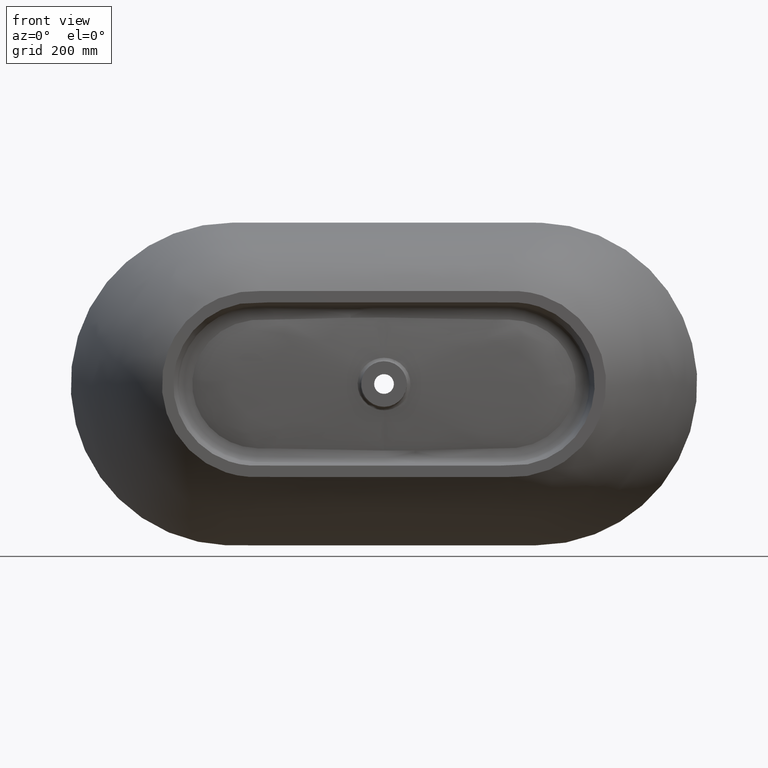
[diagram: clean part render]
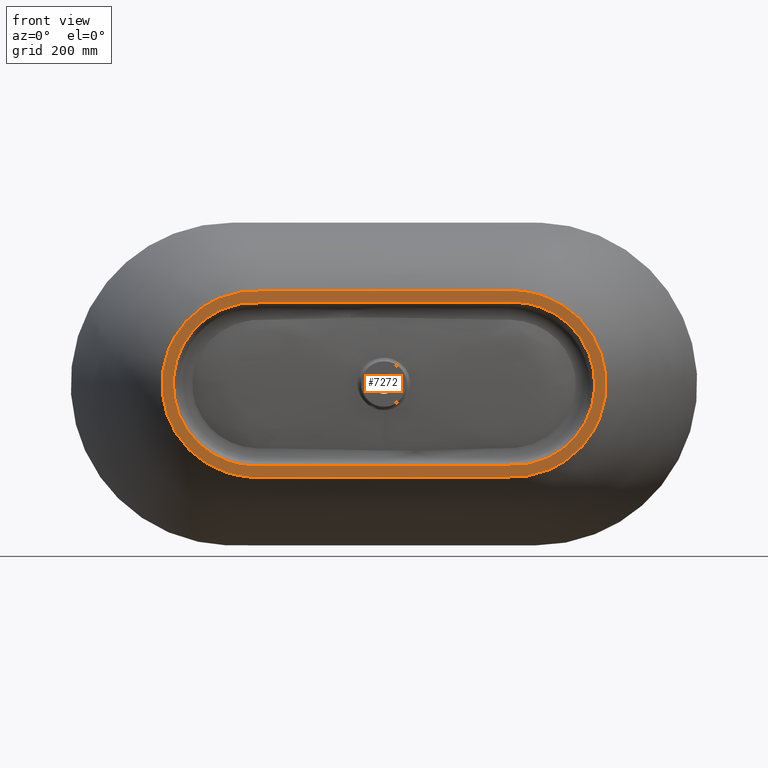
[diagram: same view with one face highlighted and labeled with its STEP entity id]
A machine part, front view. The second image highlights one B-rep face of the part: STEP entity #7272.
In plain terms, the highlighted planar face has unit normal (-0, -1, 0).
Its self-contained STEP definition (entity closure, byte-faithful):
#35 = CARTESIAN_POINT ( 'NONE',  ( -257.5522965645100700, -520.0000000000000000, -214.9999999999999400 ) ) ;
#216 = CARTESIAN_POINT ( 'NONE',  ( 90.41702080883963800, -520.0000000000000000, -244.9999999999997700 ) ) ;
#301 = CARTESIAN_POINT ( 'NONE',  ( 300.3871567263852900, -520.0000000000000000, -215.0000000000002800 ) ) ;
#363 = CARTESIAN_POINT ( 'NONE',  ( 551.9206403170097700, -520.0000000000000000, -41.99693631105152000 ) ) ;
#424 = CARTESIAN_POINT ( 'NONE',  ( 332.5872304533469900, -520.0000000000000000, 214.9999999999999100 ) ) ;
#576 = CARTESIAN_POINT ( 'NONE',  ( -22.60425520220978900, -520.0000000000000000, 245.0000000000000600 ) ) ;
#624 = CARTESIAN_POINT ( 'NONE',  ( -420.5359307558968600, -520.0000000000000000, 233.0066095239372700 ) ) ;
#676 = CARTESIAN_POINT ( 'NONE',  ( -520.9419420288196500, -520.0000000000000000, -166.4165818250603500 ) ) ;
#730 = CARTESIAN_POINT ( 'NONE',  ( -180.8340416176759200, -520.0000000000000000, -244.9999999999998900 ) ) ;
#997 = CARTESIAN_POINT ( 'NONE',  ( 366.8051746538268400, -520.0000000000000000, -243.5484346488350100 ) ) ;
#1051 = CARTESIAN_POINT ( 'NONE',  ( 571.3716036474653500, -520.0000000000000000, 82.47199614046758100 ) ) ;
#1107 = CARTESIAN_POINT ( 'NONE',  ( 302.8190437295374400, -520.0000000000000000, 245.0000000000000000 ) ) ;
#1125 = VERTEX_POINT ( 'NONE', #12887 ) ;
#1164 = CARTESIAN_POINT ( 'NONE',  ( -38.02641016758445900, -520.0000000000000000, 215.0000000000000600 ) ) ;
#1219 = CARTESIAN_POINT ( 'NONE',  ( -432.5557374642888200, -520.0000000000000000, 195.3177173248473100 ) ) ;
#1254 = ORIENTED_EDGE ( 'NONE', *, *, #15651, .T. ) ;
#1277 = CARTESIAN_POINT ( 'NONE',  ( -466.3415299936548300, -520.0000000000000000, -175.3112923314426700 ) ) ;
#1332 = CARTESIAN_POINT ( 'NONE',  ( 10.31327349446679900, -520.0000000000001100, 214.9999999999793700 ) ) ;
#1339 = CARTESIAN_POINT ( 'NONE',  ( -84.50313370574247100, -520.0000000000000000, -214.9999999999999700 ) ) ;
#1590 = CARTESIAN_POINT ( 'NONE',  ( 332.5872304533469300, -520.0000000000000000, -215.0000000000000600 ) ) ;
#1645 = CARTESIAN_POINT ( 'NONE',  ( 551.9206403170102200, -520.0000000000001100, 41.99693631105114400 ) ) ;
#1673 = ORIENTED_EDGE ( 'NONE', *, *, #14366, .T. ) ;
#1697 = CARTESIAN_POINT ( 'NONE',  ( 300.3871567263854000, -520.0000000000000000, 214.9999999999998600 ) ) ;
#1849 = CARTESIAN_POINT ( 'NONE',  ( -122.0629780919324400, -520.0000000000000000, 245.0000000000002000 ) ) ;
#1897 = CARTESIAN_POINT ( 'NONE',  ( -495.2204484716090700, -520.0000000000000000, 190.9875430266695300 ) ) ;
#1946 = CARTESIAN_POINT ( 'NONE',  ( -460.3643974913436000, -520.0000000000002300, -214.7080822653276200 ) ) ;
#1998 = CARTESIAN_POINT ( 'NONE',  ( 2.094515084690348400E-012, -520.0000000000000000, -244.9999999999998300 ) ) ;
#2269 = CARTESIAN_POINT ( 'NONE',  ( 389.6510431050084000, -520.0000000000000000, -240.4959836230623900 ) ) ;
#2322 = CARTESIAN_POINT ( 'NONE',  ( 542.1981400596857800, -520.0000000000000000, 139.3641364882206800 ) ) ;
#2373 = CARTESIAN_POINT ( 'NONE',  ( 275.5768968157795500, -520.0000000000000000, 245.0000000000000000 ) ) ;
#2434 = CARTESIAN_POINT ( 'NONE',  ( -185.9068941526349800, -520.0000000000000000, 214.9999999999997200 ) ) ;
#2483 = CARTESIAN_POINT ( 'NONE',  ( -491.5787133488913700, -520.0000000000000000, 153.6634307035676600 ) ) ;
#2537 = CARTESIAN_POINT ( 'NONE',  ( -394.1818514382088100, -520.0000000000000000, -209.6317060663056400 ) ) ;
#2852 = CARTESIAN_POINT ( 'NONE',  ( 345.9634401219416900, -520.0000000000000000, -214.9377571204438800 ) ) ;
#2914 = CARTESIAN_POINT ( 'NONE',  ( 529.8286189581423300, -520.0000000000000000, 102.9915015449335700 ) ) ;
#2967 = CARTESIAN_POINT ( 'NONE',  ( 261.5951920117919900, -520.0000000000000000, 214.9999999999999100 ) ) ;
#3104 = CARTESIAN_POINT ( 'NONE',  ( -275.5768968157791500, -520.0000000000000000, 245.0000000000000000 ) ) ;
#3160 = CARTESIAN_POINT ( 'NONE',  ( -542.1981400596857800, -519.9999999999998900, 139.3641364882205900 ) ) ;
#3216 = CARTESIAN_POINT ( 'NONE',  ( -389.6510431050077700, -520.0000000000000000, -240.4959836230623000 ) ) ;
#3470 = CARTESIAN_POINT ( 'NONE',  ( 2.094515084690348400E-012, -520.0000000000000000, -244.9999999999998300 ) ) ;
#3522 = CARTESIAN_POINT ( 'NONE',  ( 460.3643974913441600, -520.0000000000000000, -214.7080822653272200 ) ) ;
#3572 = CARTESIAN_POINT ( 'NONE',  ( 495.2204484716088500, -520.0000000000002300, 190.9875430266696100 ) ) ;
#3607 = ORIENTED_EDGE ( 'NONE', *, *, #8947, .F. ) ;
#3621 = CARTESIAN_POINT ( 'NONE',  ( 122.0629780919322800, -520.0000000000000000, 244.9999999999997200 ) ) ;
#3676 = CARTESIAN_POINT ( 'NONE',  ( -261.5951920117921100, -520.0000000000000000, 214.9999999999999700 ) ) ;
#3705 = EDGE_LOOP ( 'NONE', ( #10043, #3607 ) ) ;
#3728 = CARTESIAN_POINT ( 'NONE',  ( -529.8286189581424400, -519.9999999999998900, 102.9915015449336400 ) ) ;
#3785 = CARTESIAN_POINT ( 'NONE',  ( -345.9634401219429400, -520.0000000000000000, -214.9377571204437900 ) ) ;
#3916 = AXIS2_PLACEMENT_3D ( 'NONE', #1332, #6537, #15304 ) ;
#4050 = CARTESIAN_POINT ( 'NONE',  ( 2.153672480649979000E-014, -520.0000000000000000, -214.9999999999999100 ) ) ;
#4107 = CARTESIAN_POINT ( 'NONE',  ( 394.1818514382069900, -520.0000000000000000, -209.6317060663058100 ) ) ;
#4164 = CARTESIAN_POINT ( 'NONE',  ( 491.5787133488913700, -520.0000000000000000, 153.6634307035674900 ) ) ;
#4212 = CARTESIAN_POINT ( 'NONE',  ( 185.9068941526347500, -520.0000000000000000, 214.9999999999998600 ) ) ;
#4369 = CARTESIAN_POINT ( 'NONE',  ( -302.8190437295375000, -520.0000000000000000, 244.9999999999998900 ) ) ;
#4420 = CARTESIAN_POINT ( 'NONE',  ( -571.3716036474651200, -519.9999999999998900, 82.47199614046721200 ) ) ;
#4478 = CARTESIAN_POINT ( 'NONE',  ( -366.8051746538251900, -520.0000000000000000, -243.5484346488350700 ) ) ;
#4730 = CARTESIAN_POINT ( 'NONE',  ( 180.8340416176772300, -520.0000000000000000, -244.9999999999996600 ) ) ;
#4782 = CARTESIAN_POINT ( 'NONE',  ( 520.9419420288199900, -519.9999999999998900, -166.4165818250595500 ) ) ;
#4842 = CARTESIAN_POINT ( 'NONE',  ( 420.5359307558969700, -520.0000000000000000, 233.0066095239373000 ) ) ;
#4857 = CARTESIAN_POINT ( 'NONE',  ( 2.094515084690348400E-012, -520.0000000000000000, -244.9999999999998300 ) ) ;
#4889 = CARTESIAN_POINT ( 'NONE',  ( 27.17686934352849800, -520.0000000000001100, 244.7461983491785100 ) ) ;
#4946 = CARTESIAN_POINT ( 'NONE',  ( -300.3871567263849400, -520.0000000000004500, 214.9999999999998600 ) ) ;
#5006 = CARTESIAN_POINT ( 'NONE',  ( -551.9206403170100000, -520.0000000000000000, 41.99693631105129300 ) ) ;
#5064 = CARTESIAN_POINT ( 'NONE',  ( -332.5872304533477300, -520.0000000000000000, -214.9999999999999100 ) ) ;
#5394 = CARTESIAN_POINT ( 'NONE',  ( 466.3415299936539200, -520.0000000000000000, -175.3112923314430700 ) ) ;
#5457 = CARTESIAN_POINT ( 'NONE',  ( 432.5557374642891700, -520.0000000000000000, 195.3177173248472500 ) ) ;
#5510 = CARTESIAN_POINT ( 'NONE',  ( 38.02641016758431600, -520.0000000000000000, 214.9999999999998900 ) ) ;
#5554 = B_SPLINE_CURVE_WITH_KNOTS ( 'NONE', 3,
 ( #3470, #216, #4730, #13538, #6043, #14814, #7343, #16081, #8603, #997, #9837, #2269, #11052, #3522, #12326, #4782, #13592, #6097, #14865, #7396, #16139, #8658, #1051, #9886, #2322, #11104, #3572, #12382, #4842, #13645, #6152, #14928, #7453, #16193, #8709, #1107, #9936, #2373, #11158, #3621, #12432, #4889, #13698, #6202 ),
 .UNSPECIFIED., .F., .F.,
 ( 4, 2, 2, 2, 2, 2, 1, 1, 1, 1, 1, 1, 1, 1, 1, 1, 1, 1, 1, 1, 1, 1, 1, 2, 2, 2, 2, 2, 1, 1, 1, 4 ),
 ( 0.5000000000000002200, 0.5929123738240255100, 0.5973575937425831300, 0.6164611368433877700, 0.6246115803238427900, 0.6278934392747964600, 0.6452749158826837100, 0.6609740912289252500, 0.6736787968712916200, 0.6889467196373984000, 0.6976374579413418000, 0.7092978130915990100, 0.7238187289706709000, 0.7296489065457996100, 0.7500000000008616400, 0.7703510934542008300, 0.7761812710293291000, 0.7907021869084014400, 0.8023625420586582000, 0.8110532803626020500, 0.8263212031287084900, 0.8390259087710750800, 0.8547250841173162900, 0.8721065607252039800, 0.8753884196761577700, 0.8835388631566126700, 0.9026424062574171000, 0.9070876261759744900, 0.9814175252351948800, 0.9860631439263961600, 0.9907087626175974400, 1.000000000000000000 ),
 .UNSPECIFIED. ) ;
#5671 = CARTESIAN_POINT ( 'NONE',  ( -347.9315465469571800, -520.0000000000000000, 245.0000000000003400 ) ) ;
#5727 = CARTESIAN_POINT ( 'NONE',  ( -587.4048310695582100, -520.0000000000001100, -1.977584762613560100E-013 ) ) ;
#5781 = CARTESIAN_POINT ( 'NONE',  ( -347.9315465469564400, -520.0000000000000000, -244.9999999999999400 ) ) ;
#6043 = CARTESIAN_POINT ( 'NONE',  ( 279.9027312050421900, -520.0000000000000000, -245.0000000000000900 ) ) ;
#6097 = CARTESIAN_POINT ( 'NONE',  ( 559.6452825062745000, -519.9999999999998900, -110.7294835328564200 ) ) ;
#6152 = CARTESIAN_POINT ( 'NONE',  ( 369.9468795812320500, -520.0000000000000000, 243.1817835745785300 ) ) ;
#6202 = CARTESIAN_POINT ( 'NONE',  ( 0.9145228282635448100, -520.0000000000000000, 244.9999999999882600 ) ) ;
#6264 = CARTESIAN_POINT ( 'NONE',  ( -332.5872304533471600, -520.0000000000000000, 215.0000000000000300 ) ) ;
#6318 = CARTESIAN_POINT ( 'NONE',  ( -551.9206403170100000, -519.9999999999998900, -41.99693631105110800 ) ) ;
#6374 = CARTESIAN_POINT ( 'NONE',  ( -300.3871567263864800, -520.0000000000000000, -215.0000000000002000 ) ) ;
#6537 = DIRECTION ( 'NONE',  ( -5.916901883475266000E-015, -1.000000000000000000, 1.099506799355181100E-016 ) ) ;
#6634 = CARTESIAN_POINT ( 'NONE',  ( 257.5522965645092200, -520.0000000000000000, -214.9999999999999700 ) ) ;
#6699 = CARTESIAN_POINT ( 'NONE',  ( 512.5400191937372900, -519.9999999999997700, -129.2356309731933100 ) ) ;
#6758 = CARTESIAN_POINT ( 'NONE',  ( 364.6669578311810400, -520.0000000000000000, 214.1589715166276700 ) ) ;
#6811 = CARTESIAN_POINT ( 'NONE',  ( 10.31327349446679900, -520.0000000000000000, 214.9999999999793700 ) ) ;
#6915 = CARTESIAN_POINT ( 'NONE',  ( -9.041702080883864000, -520.0000000000000000, 245.0000000000000000 ) ) ;
#6970 = CARTESIAN_POINT ( 'NONE',  ( -366.8051746538266100, -520.0000000000000000, 243.5484346488349800 ) ) ;
#7024 = CARTESIAN_POINT ( 'NONE',  ( -571.3716036474652400, -520.0000000000000000, -82.47199614046819200 ) ) ;
#7076 = CARTESIAN_POINT ( 'NONE',  ( -302.8190437295361300, -520.0000000000000000, -244.9999999999999400 ) ) ;
#7272 = ADVANCED_FACE ( 'NONE', ( #9374, #9754 ), #14022, .T. ) ;
#7343 = CARTESIAN_POINT ( 'NONE',  ( 321.4095218647685200, -520.0000000000000000, -244.9999999999998600 ) ) ;
#7396 = CARTESIAN_POINT ( 'NONE',  ( 581.9062333602101900, -519.9999999999998900, -44.93605973911622400 ) ) ;
#7453 = CARTESIAN_POINT ( 'NONE',  ( 355.8245880077240000, -520.0000000000000000, 244.6143090348132900 ) ) ;
#7509 = CARTESIAN_POINT ( 'NONE',  ( 0.9314800619462538800, -520.0000000000000000, 214.9999999999897100 ) ) ;
#7519 = CARTESIAN_POINT ( 'NONE',  ( 0.9145228282635448100, -520.0000000000000000, 244.9999999999882600 ) ) ;
#7563 = CARTESIAN_POINT ( 'NONE',  ( -345.9634401219420900, -520.0000000000000000, 214.9377571204438200 ) ) ;
#7613 = CARTESIAN_POINT ( 'NONE',  ( -529.8286189581425600, -520.0000000000001100, -102.9915015449337300 ) ) ;
#7672 = CARTESIAN_POINT ( 'NONE',  ( -261.5951920117917100, -520.0000000000000000, -214.9999999999999100 ) ) ;
#7917 = CARTESIAN_POINT ( 'NONE',  ( 283.0126220927289200, -520.0000000000000000, -214.9999999999999100 ) ) ;
#7978 = CARTESIAN_POINT ( 'NONE',  ( 541.4642478926253900, -519.9999999999998900, -76.86005898860335600 ) ) ;
#8034 = CARTESIAN_POINT ( 'NONE',  ( 342.9848270399493800, -520.0000000000000000, 215.0000000000000000 ) ) ;
#8240 = CARTESIAN_POINT ( 'NONE',  ( -389.6510431050090800, -520.0000000000000000, 240.4959836230622400 ) ) ;
#8292 = CARTESIAN_POINT ( 'NONE',  ( -542.1981400596849900, -520.0000000000000000, -139.3641364882215000 ) ) ;
#8346 = CARTESIAN_POINT ( 'NONE',  ( -275.5768968157773300, -520.0000000000000000, -245.0000000000000000 ) ) ;
#8603 = CARTESIAN_POINT ( 'NONE',  ( 355.8245880077244600, -520.0000000000000000, -244.6143090348134300 ) ) ;
#8658 = CARTESIAN_POINT ( 'NONE',  ( 581.9062333602105400, -520.0000000000000000, 44.93605973911595400 ) ) ;
#8709 = CARTESIAN_POINT ( 'NONE',  ( 321.4095218647688100, -520.0000000000000000, 245.0000000000001100 ) ) ;
#8760 = CARTESIAN_POINT ( 'NONE',  ( -21.12578342643584200, -520.0000000000000000, 215.0000000000000600 ) ) ;
#8810 = CARTESIAN_POINT ( 'NONE',  ( -394.1818514382075000, -520.0000000000000000, 209.6317060663057200 ) ) ;
#8862 = CARTESIAN_POINT ( 'NONE',  ( -491.5787133488915400, -520.0000000000000000, -153.6634307035675100 ) ) ;
#8918 = CARTESIAN_POINT ( 'NONE',  ( -169.0062674114858500, -520.0000000000000000, -215.0000000000000900 ) ) ;
#8947 = EDGE_CURVE ( 'NONE', #11357, #1125, #9377, .T. ) ;
#9178 = CARTESIAN_POINT ( 'NONE',  ( 325.1744609066936400, -520.0000000000000000, -214.9999999999999700 ) ) ;
#9235 = CARTESIAN_POINT ( 'NONE',  ( 557.3936323266134400, -520.0000000000001100, -4.336808689942017700E-016 ) ) ;
#9287 = CARTESIAN_POINT ( 'NONE',  ( 325.1744609066937500, -520.0000000000000000, 214.9999999999999700 ) ) ;
#9300 = EDGE_LOOP ( 'NONE', ( #1673, #1254 ) ) ;
#9374 = FACE_BOUND ( 'NONE', #3705, .T. ) ;
#9377 = B_SPLINE_CURVE_WITH_KNOTS ( 'NONE', 3,
 ( #4050, #10350, #14128, #6634, #15394, #7917, #301, #9178, #1590, #10407, #2852, #11622, #4107, #12906, #5394, #14182, #6699, #15450, #7978, #363, #9235, #1645, #10466, #2914, #11679, #4164, #12963, #5457, #14232, #6758, #15509, #8034, #424, #9287, #1697, #10518, #2967, #11737, #4212, #13017, #5510, #14290, #6811, #15565 ),
 .UNSPECIFIED., .F., .F.,
 ( 4, 2, 2, 2, 2, 2, 1, 1, 1, 1, 1, 1, 1, 1, 1, 1, 1, 1, 1, 1, 1, 1, 1, 2, 2, 2, 2, 2, 1, 1, 1, 4 ),
 ( 0.5000000000000002200, 0.5929123738240255100, 0.5973575937425831300, 0.6164611368433877700, 0.6246115803238427900, 0.6278934392747964600, 0.6452749158826837100, 0.6609740912289252500, 0.6736787968712916200, 0.6889467196373984000, 0.6976374579413418000, 0.7092978130915990100, 0.7238187289706709000, 0.7296489065457996100, 0.7500000000008616400, 0.7703510934542008300, 0.7761812710293291000, 0.7907021869084014400, 0.8023625420586582000, 0.8110532803626020500, 0.8263212031287084900, 0.8390259087710750800, 0.8547250841173162900, 0.8721065607252039800, 0.8753884196761577700, 0.8835388631566126700, 0.9026424062574171000, 0.9070876261759744900, 0.9814175252351948800, 0.9860631439263961600, 0.9907087626175974400, 1.000000000000000000 ),
 .UNSPECIFIED. ) ;
#9435 = CARTESIAN_POINT ( 'NONE',  ( -40.68765936397755900, -520.0000000000000000, 245.0000000000001100 ) ) ;
#9486 = CARTESIAN_POINT ( 'NONE',  ( -460.3643974913449000, -520.0000000000000000, 214.7080822653266200 ) ) ;
#9537 = CARTESIAN_POINT ( 'NONE',  ( -495.2204484716084500, -520.0000000000002300, -190.9875430266701800 ) ) ;
#9589 = CARTESIAN_POINT ( 'NONE',  ( -90.41702080883692400, -520.0000000000000000, -244.9999999999998900 ) ) ;
#9754 = FACE_OUTER_BOUND ( 'NONE', #9300, .T. ) ;
#9837 = CARTESIAN_POINT ( 'NONE',  ( 369.9468795812323900, -520.0000000000000000, -243.1817835745786700 ) ) ;
#9886 = CARTESIAN_POINT ( 'NONE',  ( 559.6452825062749500, -520.0000000000000000, 110.7294835328559400 ) ) ;
#9895 = EDGE_CURVE ( 'NONE', #1125, #11357, #10610, .T. ) ;
#9936 = CARTESIAN_POINT ( 'NONE',  ( 279.9027312050430400, -520.0000000000000000, 245.0000000000000000 ) ) ;
#9989 = CARTESIAN_POINT ( 'NONE',  ( -114.0792305027531900, -520.0000000000000000, 215.0000000000000300 ) ) ;
#10039 = CARTESIAN_POINT ( 'NONE',  ( -466.3415299936539200, -520.0000000000000000, 175.3112923314430400 ) ) ;
#10043 = ORIENTED_EDGE ( 'NONE', *, *, #9895, .F. ) ;
#10093 = CARTESIAN_POINT ( 'NONE',  ( -432.5557374642890000, -520.0000000000002300, -195.3177173248472800 ) ) ;
#10150 = CARTESIAN_POINT ( 'NONE',  ( 2.153672480649979000E-014, -520.0000000000000000, -214.9999999999999100 ) ) ;
#10350 = CARTESIAN_POINT ( 'NONE',  ( 84.50313370574291100, -520.0000000000000000, -214.9999999999998600 ) ) ;
#10407 = CARTESIAN_POINT ( 'NONE',  ( 342.9848270399493800, -520.0000000000000000, -215.0000000000000300 ) ) ;
#10466 = CARTESIAN_POINT ( 'NONE',  ( 541.4642478926251700, -520.0000000000000000, 76.86005898860321400 ) ) ;
#10518 = CARTESIAN_POINT ( 'NONE',  ( 283.0126220927294300, -520.0000000000000000, 214.9999999999998600 ) ) ;
#10610 = B_SPLINE_CURVE_WITH_KNOTS ( 'NONE', 3,
 ( #7509, #14980, #8760, #1164, #9989, #2434, #11215, #3676, #12491, #4946, #13761, #6264, #15028, #7563, #16301, #8810, #1219, #10039, #2483, #11262, #3728, #12537, #5006, #13814, #6318, #15083, #7613, #16355, #8862, #1277, #10093, #2537, #11316, #3785, #12590, #5064, #13868, #6374, #15140, #7672, #35, #8918, #1339, #10150 ),
 .UNSPECIFIED., .F., .F.,
 ( 4, 1, 1, 1, 2, 2, 2, 2, 2, 1, 1, 1, 1, 1, 1, 1, 1, 1, 1, 1, 1, 1, 1, 1, 1, 1, 2, 2, 2, 2, 2, 4 ),
 ( 0.0000000000000000000, 0.009291237382402568700, 0.01393685607360396800, 0.01858247476480513700, 0.09291237382402560400, 0.09735759374258298700, 0.1164611368433875500, 0.1246115803238423700, 0.1278934392747962400, 0.1452749158826837600, 0.1609740912289249800, 0.1736787968712916200, 0.1889467196373980600, 0.1976374579413419700, 0.2092978130915986700, 0.2238187289706711200, 0.2296489065457992800, 0.2500000000008618100, 0.2703510934542004400, 0.2761812710293292100, 0.2907021869084010500, 0.3023625420586583100, 0.3110532803626016000, 0.3263212031287088300, 0.3390259087710747500, 0.3547250841173165700, 0.3721065607252034800, 0.3753884196761578800, 0.3835388631566121200, 0.4026424062574173700, 0.4070876261759747200, 0.5000000000000002200 ),
 .UNSPECIFIED. ) ;
#10664 = CARTESIAN_POINT ( 'NONE',  ( -198.9174457794455000, -520.0000000000000000, 245.0000000000001100 ) ) ;
#10710 = CARTESIAN_POINT ( 'NONE',  ( -520.9419420288204500, -519.9999999999998900, 166.4165818250592100 ) ) ;
#10759 = CARTESIAN_POINT ( 'NONE',  ( -420.5359307558958900, -520.0000000000003400, -233.0066095239374700 ) ) ;
#11052 = CARTESIAN_POINT ( 'NONE',  ( 420.5359307558964600, -520.0000000000000000, -233.0066095239375300 ) ) ;
#11104 = CARTESIAN_POINT ( 'NONE',  ( 520.9419420288202200, -520.0000000000000000, 166.4165818250591800 ) ) ;
#11158 = CARTESIAN_POINT ( 'NONE',  ( 198.9174457794451900, -520.0000000000000000, 244.9999999999995500 ) ) ;
#11215 = CARTESIAN_POINT ( 'NONE',  ( -257.5522965645104100, -520.0000000000000000, 214.9999999999999700 ) ) ;
#11262 = CARTESIAN_POINT ( 'NONE',  ( -512.5400191937376300, -520.0000000000000000, 129.2356309731931400 ) ) ;
#11316 = CARTESIAN_POINT ( 'NONE',  ( -364.6669578311818900, -520.0000000000000000, -214.1589715166275600 ) ) ;
#11357 = VERTEX_POINT ( 'NONE', #11811 ) ;
#11622 = CARTESIAN_POINT ( 'NONE',  ( 364.6669578311804100, -520.0000000000000000, -214.1589715166277300 ) ) ;
#11679 = CARTESIAN_POINT ( 'NONE',  ( 512.5400191937377500, -520.0000000000000000, 129.2356309731929700 ) ) ;
#11737 = CARTESIAN_POINT ( 'NONE',  ( 257.5522965645103600, -520.0000000000000000, 214.9999999999999100 ) ) ;
#11811 = CARTESIAN_POINT ( 'NONE',  ( 2.153672480649979000E-014, -520.0000000000000000, -214.9999999999999100 ) ) ;
#11890 = CARTESIAN_POINT ( 'NONE',  ( -279.9027312050424700, -520.0000000000000000, 245.0000000000000000 ) ) ;
#11944 = CARTESIAN_POINT ( 'NONE',  ( -559.6452825062751800, -519.9999999999998900, 110.7294835328555800 ) ) ;
#12001 = CARTESIAN_POINT ( 'NONE',  ( -369.9468795812314300, -520.0000000000000000, -243.1817835745786700 ) ) ;
#12054 = B_SPLINE_CURVE_WITH_KNOTS ( 'NONE', 3,
 ( #15656, #6915, #576, #9435, #1849, #10664, #3104, #11890, #4369, #13170, #5671, #14440, #6970, #15707, #8240, #624, #9486, #1897, #10710, #3160, #11944, #4420, #13218, #5727, #14497, #7024, #15760, #8292, #676, #9537, #1946, #10759, #3216, #12001, #4478, #13273, #5781, #14554, #7076, #15816, #8346, #730, #9589, #1998 ),
 .UNSPECIFIED., .F., .F.,
 ( 4, 1, 1, 1, 2, 2, 2, 2, 2, 1, 1, 1, 1, 1, 1, 1, 1, 1, 1, 1, 1, 1, 1, 1, 1, 1, 2, 2, 2, 2, 2, 4 ),
 ( 0.0000000000000000000, 0.009291237382402568700, 0.01393685607360396800, 0.01858247476480513700, 0.09291237382402560400, 0.09735759374258298700, 0.1164611368433875500, 0.1246115803238423700, 0.1278934392747962400, 0.1452749158826837600, 0.1609740912289249800, 0.1736787968712916200, 0.1889467196373980600, 0.1976374579413419700, 0.2092978130915986700, 0.2238187289706711200, 0.2296489065457992800, 0.2500000000008618100, 0.2703510934542004400, 0.2761812710293292100, 0.2907021869084010500, 0.3023625420586583100, 0.3110532803626016000, 0.3263212031287088300, 0.3390259087710747500, 0.3547250841173165700, 0.3721065607252034800, 0.3753884196761578800, 0.3835388631566121200, 0.4026424062574173700, 0.4070876261759747200, 0.5000000000000002200 ),
 .UNSPECIFIED. ) ;
#12326 = CARTESIAN_POINT ( 'NONE',  ( 495.2204484716092500, -520.0000000000000000, -190.9875430266698100 ) ) ;
#12382 = CARTESIAN_POINT ( 'NONE',  ( 460.3643974913447900, -520.0000000000002300, 214.7080822653268800 ) ) ;
#12432 = CARTESIAN_POINT ( 'NONE',  ( 40.68765936397742400, -520.0000000000000000, 244.9999999999999100 ) ) ;
#12491 = CARTESIAN_POINT ( 'NONE',  ( -283.0126220927296600, -520.0000000000000000, 214.9999999999999700 ) ) ;
#12537 = CARTESIAN_POINT ( 'NONE',  ( -541.4642478926250500, -519.9999999999998900, 76.86005898860322800 ) ) ;
#12590 = CARTESIAN_POINT ( 'NONE',  ( -342.9848270399500100, -520.0000000000000000, -214.9999999999999700 ) ) ;
#12887 = CARTESIAN_POINT ( 'NONE',  ( 0.9314800619462538800, -520.0000000000000000, 214.9999999999897100 ) ) ;
#12906 = CARTESIAN_POINT ( 'NONE',  ( 432.5557374642882600, -520.0000000000000000, -195.3177173248475900 ) ) ;
#12963 = CARTESIAN_POINT ( 'NONE',  ( 466.3415299936542100, -520.0000000000002300, 175.3112923314429800 ) ) ;
#13017 = CARTESIAN_POINT ( 'NONE',  ( 114.0792305027530300, -520.0000000000000000, 214.9999999999997200 ) ) ;
#13170 = CARTESIAN_POINT ( 'NONE',  ( -321.4095218647692000, -520.0000000000004500, 244.9999999999996600 ) ) ;
#13218 = CARTESIAN_POINT ( 'NONE',  ( -581.9062333602100800, -520.0000000000000000, 44.93605973911568400 ) ) ;
#13273 = CARTESIAN_POINT ( 'NONE',  ( -355.8245880077228100, -520.0000000000000000, -244.6143090348134000 ) ) ;
#13381 = VERTEX_POINT ( 'NONE', #4857 ) ;
#13530 = VERTEX_POINT ( 'NONE', #7519 ) ;
#13538 = CARTESIAN_POINT ( 'NONE',  ( 275.5768968157785300, -520.0000000000000000, -245.0000000000000600 ) ) ;
#13592 = CARTESIAN_POINT ( 'NONE',  ( 542.1981400596853300, -519.9999999999997700, -139.3641364882209900 ) ) ;
#13645 = CARTESIAN_POINT ( 'NONE',  ( 389.6510431050085100, -520.0000000000000000, 240.4959836230621900 ) ) ;
#13698 = CARTESIAN_POINT ( 'NONE',  ( 10.87074773741095500, -520.0000000000001100, 244.9999999999765200 ) ) ;
#13761 = CARTESIAN_POINT ( 'NONE',  ( -325.1744609066942600, -520.0000000000000000, 215.0000000000001700 ) ) ;
#13814 = CARTESIAN_POINT ( 'NONE',  ( -557.3936323266134400, -520.0000000000001100, 3.799586513475450300E-013 ) ) ;
#13868 = CARTESIAN_POINT ( 'NONE',  ( -325.1744609066951200, -520.0000000000000000, -214.9999999999999400 ) ) ;
#14022 = PLANE ( 'NONE',  #3916 ) ;
#14128 = CARTESIAN_POINT ( 'NONE',  ( 169.0062674114848800, -520.0000000000000000, -214.9999999999998600 ) ) ;
#14182 = CARTESIAN_POINT ( 'NONE',  ( 491.5787133488907400, -519.9999999999998900, -153.6634307035679100 ) ) ;
#14232 = CARTESIAN_POINT ( 'NONE',  ( 394.1818514382079600, -520.0000000000000000, 209.6317060663058400 ) ) ;
#14290 = CARTESIAN_POINT ( 'NONE',  ( 25.78318373616805200, -520.0000000000000000, 214.7772761023403500 ) ) ;
#14366 = EDGE_CURVE ( 'NONE', #13530, #13381, #12054, .T. ) ;
#14440 = CARTESIAN_POINT ( 'NONE',  ( -355.8245880077241700, -520.0000000000000000, 244.6143090348134000 ) ) ;
#14497 = CARTESIAN_POINT ( 'NONE',  ( -581.9062333602101900, -519.9999999999998900, -44.93605973911662200 ) ) ;
#14554 = CARTESIAN_POINT ( 'NONE',  ( -321.4095218647683500, -520.0000000000000000, -245.0000000000001100 ) ) ;
#14814 = CARTESIAN_POINT ( 'NONE',  ( 302.8190437295371600, -520.0000000000000000, -245.0000000000001100 ) ) ;
#14865 = CARTESIAN_POINT ( 'NONE',  ( 571.3716036474652400, -519.9999999999998900, -82.47199614046755300 ) ) ;
#14928 = CARTESIAN_POINT ( 'NONE',  ( 366.8051746538264400, -520.0000000000000000, 243.5484346488349000 ) ) ;
#14980 = CARTESIAN_POINT ( 'NONE',  ( -8.450313370574290800, -520.0000000000000000, 215.0000000000000300 ) ) ;
#15028 = CARTESIAN_POINT ( 'NONE',  ( -342.9848270399496100, -520.0000000000000000, 215.0000000000000000 ) ) ;
#15083 = CARTESIAN_POINT ( 'NONE',  ( -541.4642478926253900, -520.0000000000000000, -76.86005898860297200 ) ) ;
#15140 = CARTESIAN_POINT ( 'NONE',  ( -283.0126220927296600, -520.0000000000000000, -214.9999999999999100 ) ) ;
#15304 = DIRECTION ( 'NONE',  ( 0.01857926725344768600, 0.0000000000000000000, 0.9998273905171456400 ) ) ;
#15394 = CARTESIAN_POINT ( 'NONE',  ( 261.5951920117910800, -520.0000000000000000, -214.9999999999999700 ) ) ;
#15450 = CARTESIAN_POINT ( 'NONE',  ( 529.8286189581418700, -519.9999999999998900, -102.9915015449342100 ) ) ;
#15509 = CARTESIAN_POINT ( 'NONE',  ( 345.9634401219418000, -520.0000000000000000, 214.9377571204438500 ) ) ;
#15565 = CARTESIAN_POINT ( 'NONE',  ( 0.9314800619462538800, -520.0000000000000000, 214.9999999999897100 ) ) ;
#15651 = EDGE_CURVE ( 'NONE', #13381, #13530, #5554, .T. ) ;
#15656 = CARTESIAN_POINT ( 'NONE',  ( 0.9145228282635448100, -520.0000000000000000, 244.9999999999882600 ) ) ;
#15707 = CARTESIAN_POINT ( 'NONE',  ( -369.9468795812323400, -520.0000000000000000, 243.1817835745785900 ) ) ;
#15760 = CARTESIAN_POINT ( 'NONE',  ( -559.6452825062746100, -520.0000000000001100, -110.7294835328571000 ) ) ;
#15816 = CARTESIAN_POINT ( 'NONE',  ( -279.9027312050407100, -520.0000000000000000, -245.0000000000000000 ) ) ;
#16081 = CARTESIAN_POINT ( 'NONE',  ( 347.9315465469576900, -520.0000000000000000, -245.0000000000002300 ) ) ;
#16139 = CARTESIAN_POINT ( 'NONE',  ( 587.4048310695582100, -520.0000000000000000, 6.938893903907228400E-014 ) ) ;
#16193 = CARTESIAN_POINT ( 'NONE',  ( 347.9315465469572400, -520.0000000000000000, 244.9999999999999700 ) ) ;
#16301 = CARTESIAN_POINT ( 'NONE',  ( -364.6669578311812100, -520.0000000000000000, 214.1589715166276200 ) ) ;
#16355 = CARTESIAN_POINT ( 'NONE',  ( -512.5400191937380900, -520.0000000000000000, -129.2356309731926800 ) ) ;